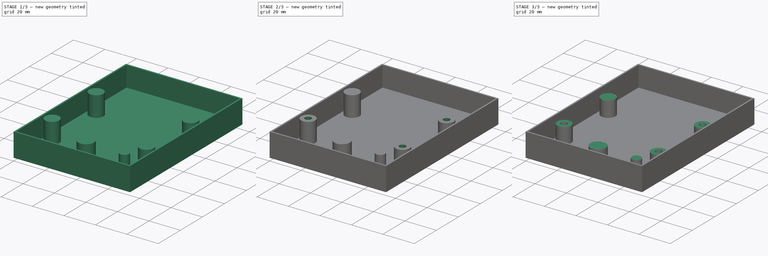
[diagram: build sequence overview — one tinted view per stage of 3, left to right]
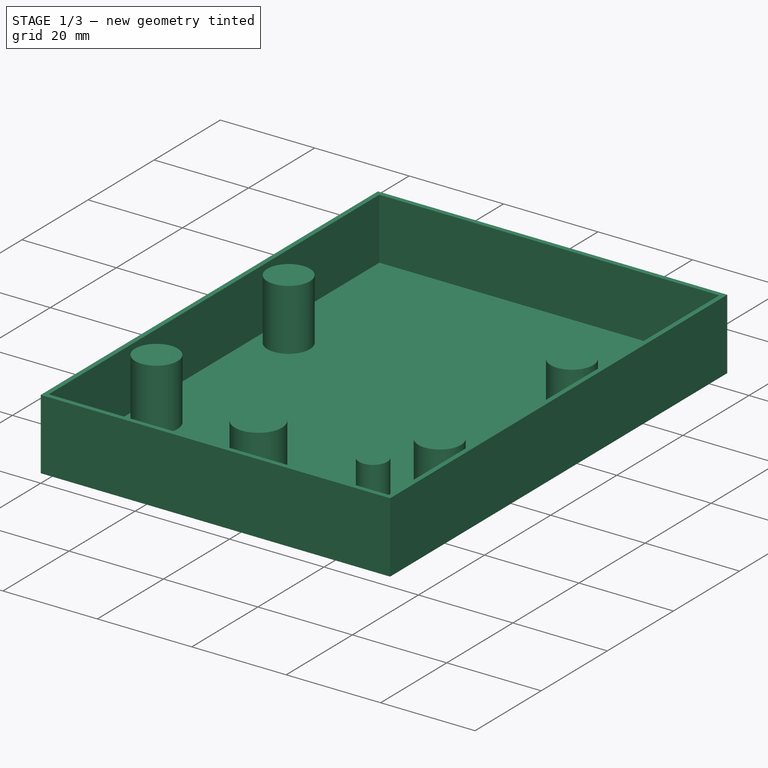
[diagram: stage 1 of 3 — iso view after this stage's code; geometry added in this stage tinted green]
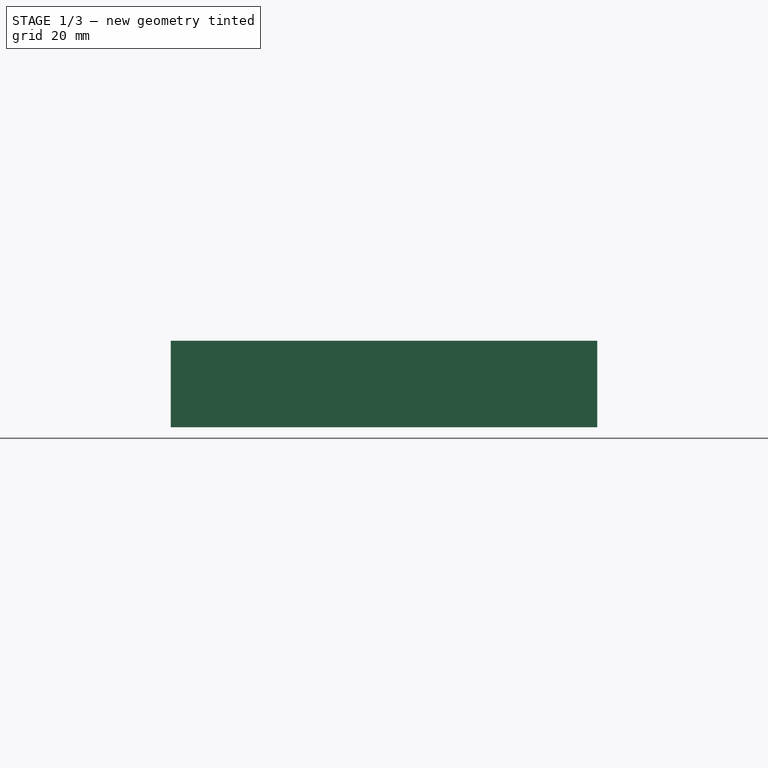
[diagram: stage 1 of 3 — front view after this stage's code; geometry added in this stage tinted green]
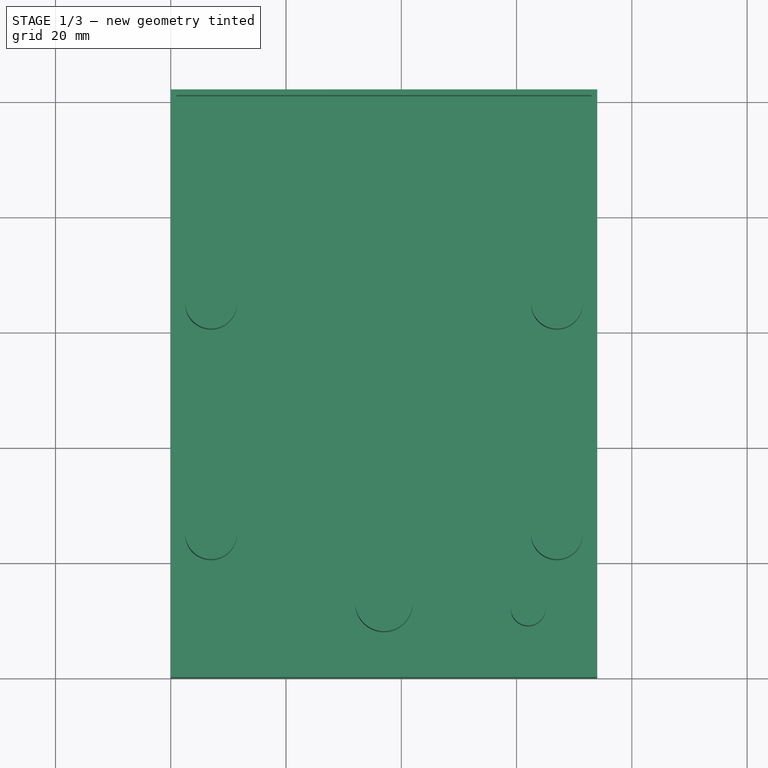
[diagram: stage 1 of 3 — top view after this stage's code; geometry added in this stage tinted green]
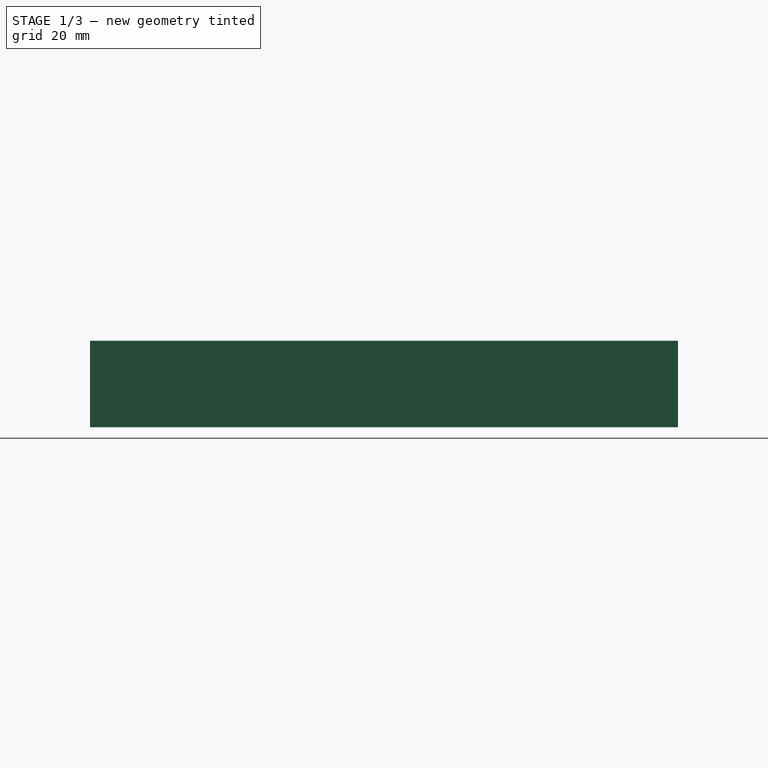
[diagram: stage 1 of 3 — right view after this stage's code; geometry added in this stage tinted green]
FCSTD DOCUMENT  (FreeCAD 0.18R16131 (Git))
Label: qs2015-t3-back
License: All rights reserved
LicenseURL: http://en.wikipedia.org/wiki/All_rights_reserved
objects: Sketcher::SketchObject×5, PartDesign::Pocket×4, PartDesign::Pad×1, PartDesign::Body×1
note: 16 computed .brp shape members not serialized (recipe doc carries the construction recipe); baked Part::Feature solids carry a one-line shape summary decoded from their .brp

FEATURE [Sketcher::SketchObject] Sketch
  MapMode = 5
  Support = -> [XY_Plane]
  sketch-geometry (4):
    g0: LineSegment StartX=0 StartY=0 StartZ=0 EndX=74 EndY=0 EndZ=0
    g1: LineSegment StartX=74 StartY=0 StartZ=0 EndX=74 EndY=102 EndZ=0
    g2: LineSegment StartX=74 StartY=102 StartZ=0 EndX=0 EndY=102 EndZ=0
    g3: LineSegment StartX=0 StartY=102 StartZ=0 EndX=0 EndY=0 EndZ=0
  constraints (11):
    c: Coincident(g0,g1)
    c: Coincident(g1,g2)
    c: Coincident(g2,g3)
    c: Coincident(g3,g0)
    c: Horizontal(g0)
    c: Horizontal(g2)
    c: Vertical(g1)
    c: Vertical(g3)
    c: Coincident(g0,g-1)
    c: DistanceX(g0,g0) = 74
    c: DistanceY(g3,g3) = 102
FEATURE [PartDesign::Pad] Pad
  Length = 15
  Length2 = 100
  Profile = -> Sketch
  Type = 0
FEATURE [Sketcher::SketchObject] Sketch001
  ExternalGeometry = -> [Pad]
  MapMode = 5
  Placement = pos=(0,0,15) rot=(0,0,1;0rad)
  Support = -> [Pad]
  sketch-geometry (20):
    g0: LineSegment StartX=1 StartY=1 StartZ=0 EndX=73 EndY=1 EndZ=0
    g1: LineSegment StartX=73 StartY=1 StartZ=0 EndX=73 EndY=101 EndZ=0
    g2: LineSegment StartX=73 StartY=101 StartZ=0 EndX=1 EndY=101 EndZ=0
    g3: LineSegment StartX=1 StartY=101 StartZ=0 EndX=1 EndY=1 EndZ=0
    g4: LineSegment [constr] StartX=7 StartY=65 StartZ=0 EndX=67 EndY=65 EndZ=0
    g5: LineSegment [constr] StartX=67 StartY=65 StartZ=0 EndX=67 EndY=25 EndZ=0
    g6: LineSegment [constr] StartX=67 StartY=25 StartZ=0 EndX=7 EndY=25 EndZ=0
    g7: LineSegment [constr] StartX=7 StartY=25 StartZ=0 EndX=7 EndY=65 EndZ=0
    g8: LineSegment [constr] StartX=1 StartY=65 StartZ=0 EndX=7 EndY=65 EndZ=0
    g9: LineSegment [constr] StartX=67 StartY=65 StartZ=0 EndX=73 EndY=65 EndZ=0
    g10: Circle CenterX=67 CenterY=25 CenterZ=0 NormalX=0 NormalY=0 NormalZ=1 AngleXU=0 Radius=4.5
    g11: Circle CenterX=7 CenterY=25 CenterZ=0 NormalX=0 NormalY=0 NormalZ=1 AngleXU=0 Radius=4.5
    g12: Circle CenterX=7 CenterY=65 CenterZ=0 NormalX=0 NormalY=0 NormalZ=1 AngleXU=0 Radius=4.5
    g13: Circle CenterX=67 CenterY=65 CenterZ=0 NormalX=0 NormalY=0 NormalZ=1 AngleXU=0 Radius=4.5
    g14: Circle CenterX=37 CenterY=13 CenterZ=0 NormalX=0 NormalY=0 NormalZ=1 AngleXU=0 Radius=5
    g15: LineSegment [constr] StartX=37 StartY=13 StartZ=0 EndX=1 EndY=13 EndZ=0
    g16: LineSegment [constr] StartX=37 StartY=13 StartZ=0 EndX=73 EndY=13 EndZ=0
    g17: LineSegment [constr] StartX=37 StartY=13 StartZ=0 EndX=37 EndY=25 EndZ=0
    g18: LineSegment [constr] StartX=37 StartY=13 StartZ=0 EndX=37 EndY=1 EndZ=0
    g19: Circle CenterX=62 CenterY=12 CenterZ=0 NormalX=0 NormalY=0 NormalZ=1 AngleXU=0 Radius=3
  constraints (56):
    c: Coincident(g0,g1)
    c: Coincident(g1,g2)
    c: Coincident(g2,g3)
    c: Coincident(g3,g0)
    c: Horizontal(g0)
    c: Horizontal(g2)
    c: Vertical(g1)
    c: Vertical(g3)
    c: DistanceX(g-1,g0) = 1
    c: DistanceY(g-1,g0) = 1
    c: DistanceX(g1,g-3) = 1
    c: DistanceY(g1,g-3) = 1
    c: Coincident(g4,g5)
    c: Coincident(g5,g6)
    c: Coincident(g6,g7)
    c: Coincident(g7,g4)
    c: Horizontal(g4)
    c: Horizontal(g6)
    c: Vertical(g5)
    c: Vertical(g7)
    c: DistanceX(g6,g6) = 60
    c: DistanceY(g7,g7) = 40
    c: DistanceY(g0,g6) = 24
    c: PointOnObject(g8,g3)
    c: Coincident(g8,g4)
    c: Coincident(g9,g4)
    c: PointOnObject(g9,g1)
    c: Horizontal(g9)
    c: Horizontal(g8)
    c: Equal(g8,g9)
    c: Equal(g10,g11)
    c: Equal(g11,g12)
    c: Equal(g12,g13)
    c: Diameter(g13) = 9
    c: Coincident(g13,g4)
    c: Diameter(g14) = 10
    c: Coincident(g15,g14)
    c: PointOnObject(g15,g3)
    c: Horizontal(g15)
    c: Coincident(g16,g14)
    c: PointOnObject(g16,g1)
    c: Horizontal(g16)
    c: Equal(g16,g15)
    c: Coincident(g17,g14)
    c: PointOnObject(g17,g6)
    c: Coincident(g18,g14)
    c: PointOnObject(g18,g0)
    c: Vertical(g18)
    c: Vertical(g17)
    c: Equal(g17,g18)
    c: Diameter(g19) = 6
    c: DistanceX(g19,g10) = 5
    c: DistanceY(g19,g5) = 13
    c: Coincident(g4,g12)
    c: Coincident(g11,g6)
    c: Coincident(g10,g5)
FEATURE [PartDesign::Pocket] Pocket
  BaseFeature = -> Pad
  Length = 13
  Length2 = 100
  Profile = -> Sketch001
  Type = 0
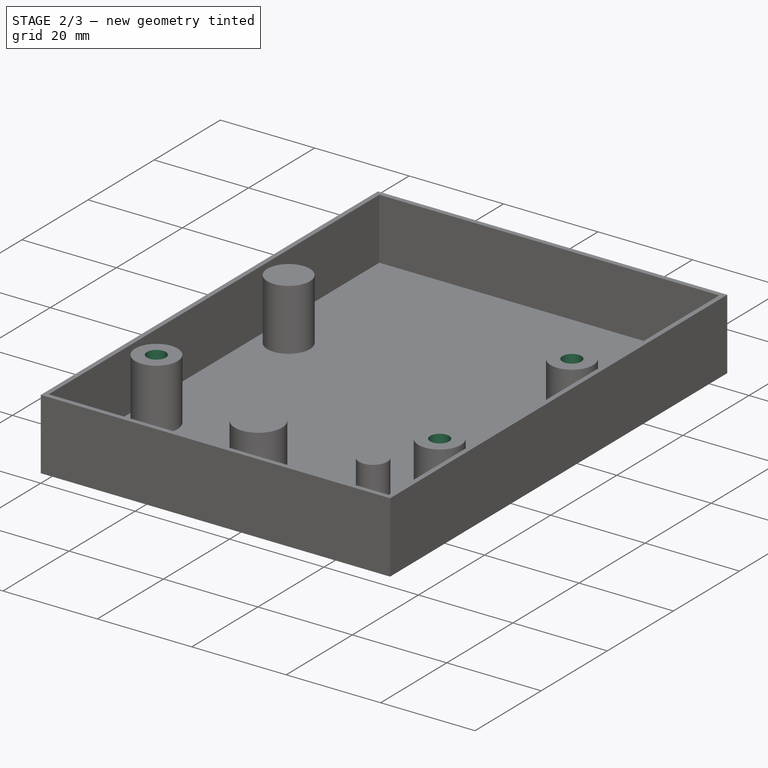
[diagram: stage 2 of 3 — iso view after this stage's code; geometry added in this stage tinted green]
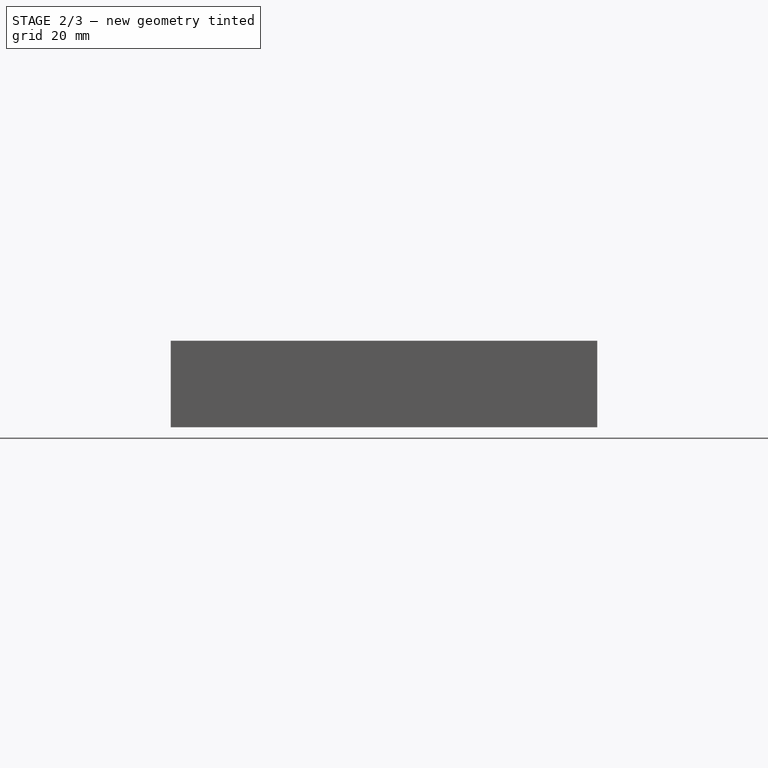
[diagram: stage 2 of 3 — front view after this stage's code; geometry added in this stage tinted green]
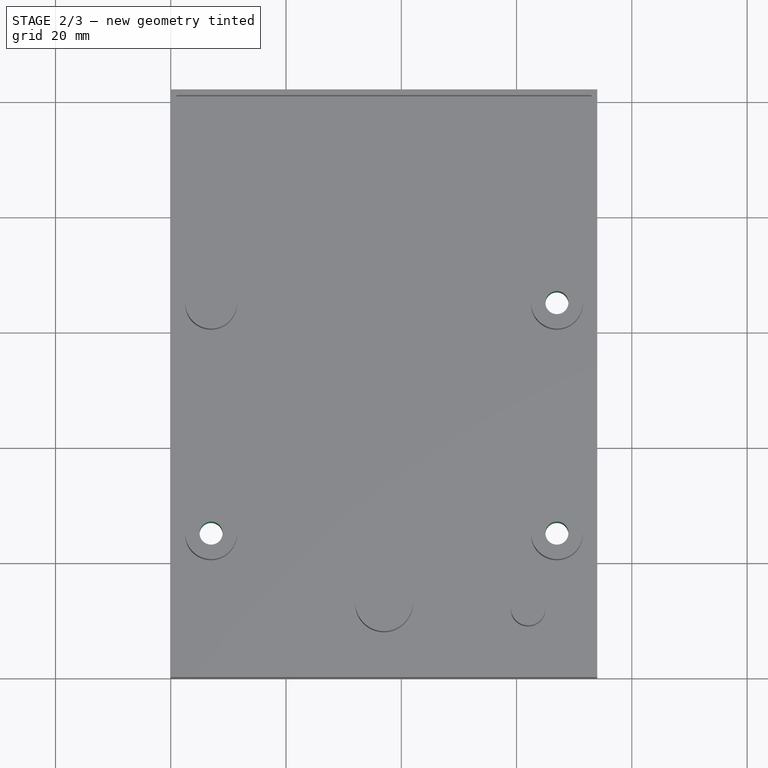
[diagram: stage 2 of 3 — top view after this stage's code; geometry added in this stage tinted green]
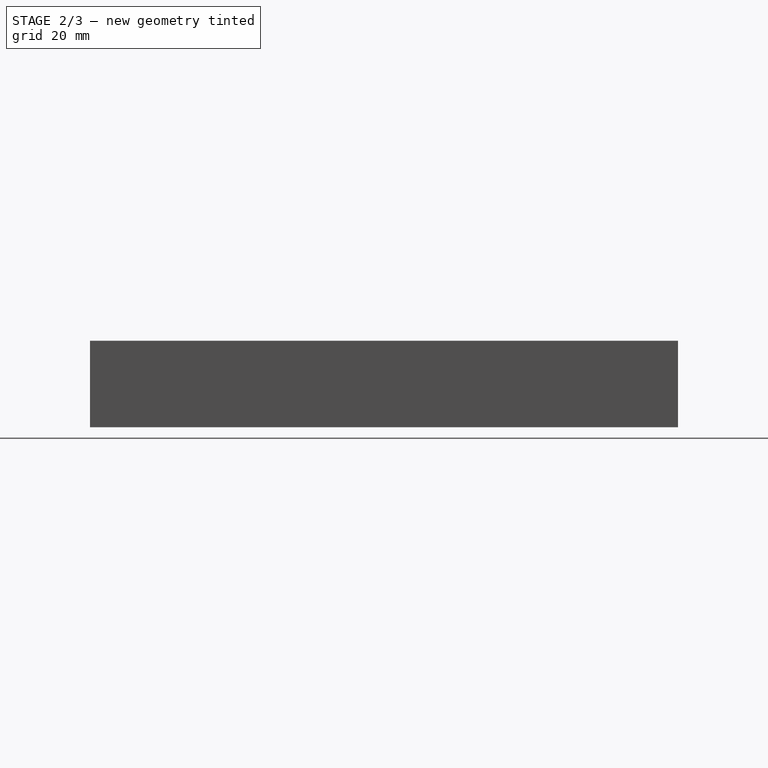
[diagram: stage 2 of 3 — right view after this stage's code; geometry added in this stage tinted green]
FEATURE [Sketcher::SketchObject] Sketch002
  ExternalGeometry = -> [Pocket]
  MapMode = 5
  Placement = pos=(0,0,15) rot=(0,0,1;0rad)
  Support = -> [Pocket]
  sketch-geometry (3):
    g0: Circle CenterX=67 CenterY=65 CenterZ=0 NormalX=0 NormalY=0 NormalZ=1 AngleXU=0 Radius=2
    g1: Circle CenterX=67 CenterY=25 CenterZ=0 NormalX=0 NormalY=0 NormalZ=1 AngleXU=0 Radius=2
    g2: Circle CenterX=7 CenterY=25 CenterZ=0 NormalX=0 NormalY=0 NormalZ=1 AngleXU=0 Radius=2
  constraints (6):
    c: Coincident(g0,g-4)
    c: Coincident(g1,g-5)
    c: Coincident(g2,g-6)
    c: Equal(g2,g1)
    c: Equal(g1,g0)
    c: Diameter(g1) = 4
FEATURE [PartDesign::Pocket] Pocket001
  BaseFeature = -> Pocket
  Length = 5
  Length2 = 100
  Profile = -> Sketch002
  Type = 1
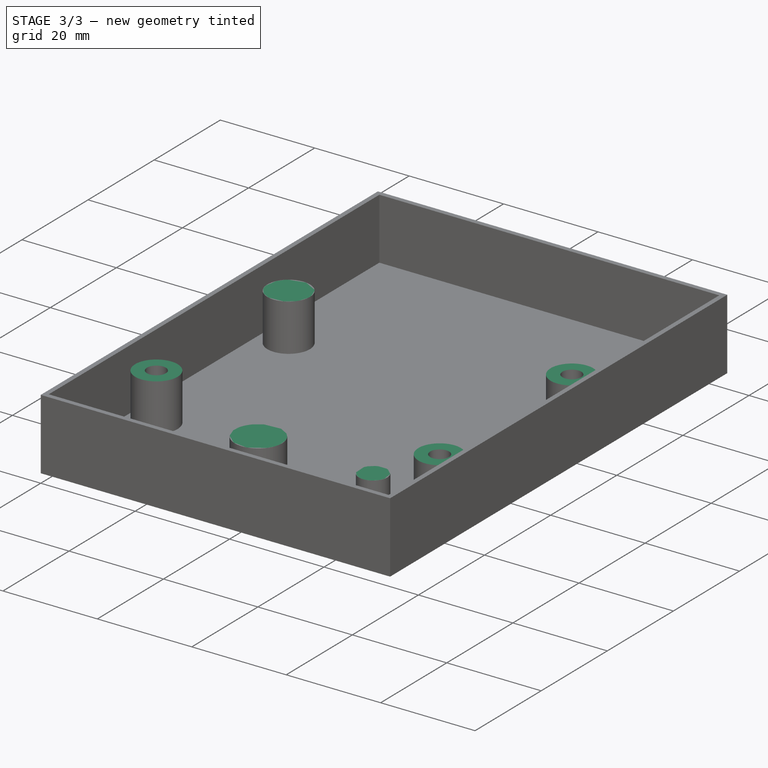
[diagram: stage 3 of 3 — iso view after this stage's code; geometry added in this stage tinted green]
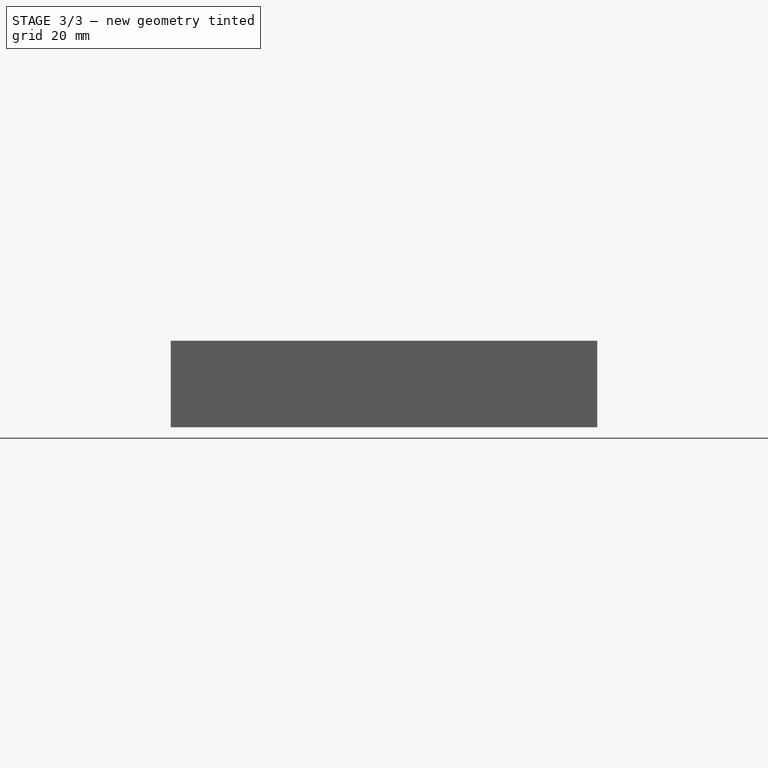
[diagram: stage 3 of 3 — front view after this stage's code; geometry added in this stage tinted green]
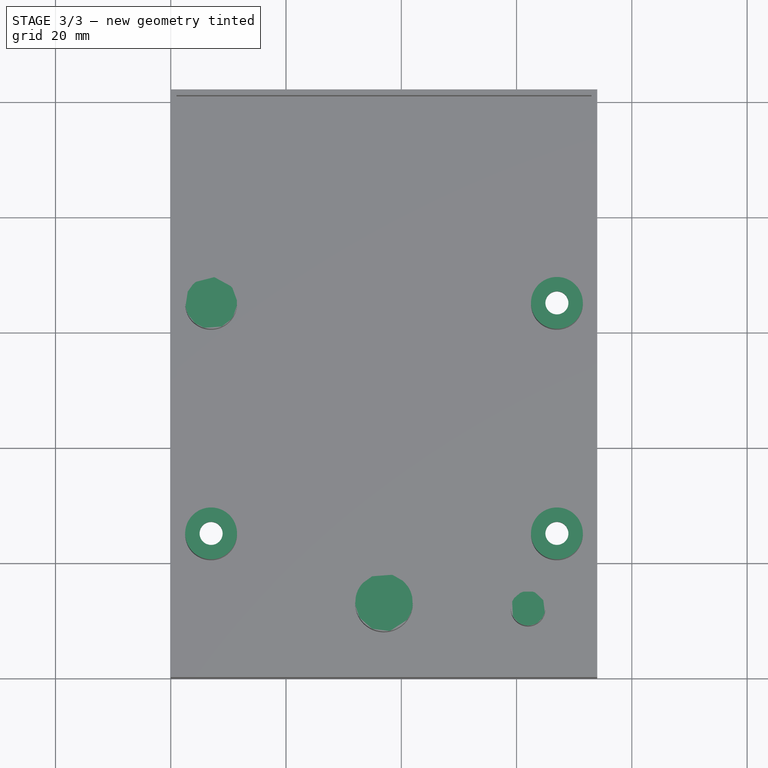
[diagram: stage 3 of 3 — top view after this stage's code; geometry added in this stage tinted green]
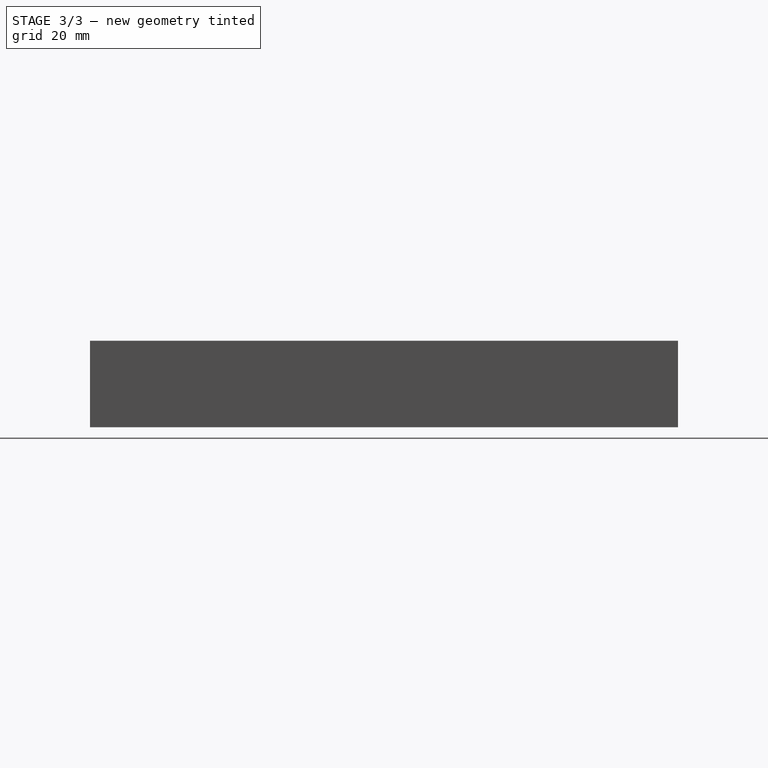
[diagram: stage 3 of 3 — right view after this stage's code; geometry added in this stage tinted green]
FEATURE [Sketcher::SketchObject] Sketch003
  ExternalGeometry = -> [Pocket001]
  MapMode = 5
  Placement = pos=(0,0,0) rot=(1,0,0;3.14159rad)
  Support = -> [Pocket001]
  sketch-geometry (21):
    g0: LineSegment StartX=9.75 StartY=-26.5877 StartZ=0 EndX=9.75 EndY=-23.4123 EndZ=0
    g1: LineSegment StartX=9.75 StartY=-23.4123 StartZ=0 EndX=7 EndY=-21.8246 EndZ=0
    g2: LineSegment StartX=7 StartY=-21.8246 StartZ=0 EndX=4.25 EndY=-23.4123 EndZ=0
    g3: LineSegment StartX=4.25 StartY=-23.4123 StartZ=0 EndX=4.25 EndY=-26.5877 EndZ=0
    g4: LineSegment StartX=4.25 StartY=-26.5877 StartZ=0 EndX=7 EndY=-28.1754 EndZ=0
    g5: LineSegment StartX=7 StartY=-28.1754 StartZ=0 EndX=9.75 EndY=-26.5877 EndZ=0
    g6: Circle [constr] CenterX=7 CenterY=-25 CenterZ=0 NormalX=0 NormalY=0 NormalZ=1 AngleXU=0 Radius=3.17543
    g7: LineSegment StartX=69.75 StartY=-26.5877 StartZ=0 EndX=69.75 EndY=-23.4123 EndZ=0
    g8: LineSegment StartX=69.75 StartY=-23.4123 StartZ=0 EndX=67 EndY=-21.8246 EndZ=0
    g9: LineSegment StartX=67 StartY=-21.8246 StartZ=0 EndX=64.25 EndY=-23.4123 EndZ=0
    g10: LineSegment StartX=64.25 StartY=-23.4123 StartZ=0 EndX=64.25 EndY=-26.5877 EndZ=0
    g11: LineSegment StartX=64.25 StartY=-26.5877 StartZ=0 EndX=67 EndY=-28.1754 EndZ=0
    g12: LineSegment StartX=67 StartY=-28.1754 StartZ=0 EndX=69.75 EndY=-26.5877 EndZ=0
    g13: Circle [constr] CenterX=67 CenterY=-25 CenterZ=0 NormalX=0 NormalY=0 NormalZ=1 AngleXU=0 Radius=3.17543
    g14: LineSegment StartX=69.75 StartY=-66.5877 StartZ=0 EndX=69.75 EndY=-63.4123 EndZ=0
    g15: LineSegment StartX=69.75 StartY=-63.4123 StartZ=0 EndX=67 EndY=-61.8246 EndZ=0
    g16: LineSegment StartX=67 StartY=-61.8246 StartZ=0 EndX=64.25 EndY=-63.4123 EndZ=0
    g17: LineSegment StartX=64.25 StartY=-63.4123 StartZ=0 EndX=64.25 EndY=-66.5877 EndZ=0
    g18: LineSegment StartX=64.25 StartY=-66.5877 StartZ=0 EndX=67 EndY=-68.1754 EndZ=0
    g19: LineSegment StartX=67 StartY=-68.1754 StartZ=0 EndX=69.75 EndY=-66.5877 EndZ=0
    g20: Circle [constr] CenterX=67 CenterY=-65 CenterZ=0 NormalX=0 NormalY=0 NormalZ=1 AngleXU=0 Radius=3.17543
  constraints (48):
    c: Coincident(g0,g1)
    c: Coincident(g1,g2)
    c: Coincident(g2,g3)
    c: Coincident(g3,g4)
    c: Coincident(g4,g5)
    c: Coincident(g5,g0)
    c: Equal(g0, g1-g5) x5
    c: PointOnObject(g0,g6)
    c: PointOnObject(g1,g6)
    c: PointOnObject(g2,g6)
    c: PointOnObject(g3,g6)
    c: PointOnObject(g4,g6)
    c: PointOnObject(g5,g6)
    c: Coincident(g7,g8)
    c: Coincident(g8,g9)
    c: Coincident(g9,g10)
    c: Coincident(g10,g11)
    c: Coincident(g11,g12)
    c: Coincident(g12,g7)
    c: Equal(g7, g8-g12) x5
    c: PointOnObject(g7,g13)
    c: PointOnObject(g8,g13)
    c: PointOnObject(g9,g13)
    c: PointOnObject(g10,g13)
    c: PointOnObject(g11,g13)
    c: PointOnObject(g12,g13)
    c: Coincident(g14,g15)
    c: Coincident(g15,g16)
    c: Coincident(g16,g17)
    c: Coincident(g17,g18)
    c: Coincident(g18,g19)
    c: Coincident(g19,g14)
    c: Equal(g14, g15-g19) x5
    c: PointOnObject(g14,g20)
    c: PointOnObject(g15,g20)
    c: PointOnObject(g16,g20)
    c: PointOnObject(g17,g20)
    c: PointOnObject(g18,g20)
    c: PointOnObject(g19,g20)
    c: Vertical(g10)
    c: Vertical(g3)
    c: Vertical(g17)
    c: Equal(g17,g10)
    c: Equal(g10,g3)
    c: DistanceX(g3,g0) = 5.5
    c: Coincident(g6,g-5)
    c: Coincident(g13,g-3)
    c: Coincident(g20,g-4)
FEATURE [PartDesign::Pocket] Pocket002
  BaseFeature = -> Pocket001
  Length = 9
  Length2 = 100
  Profile = -> Sketch003
  Type = 0
FEATURE [Sketcher::SketchObject] Sketch004
  ExternalGeometry = -> [Pocket002]
  MapMode = 5
  Placement = pos=(0,0,15) rot=(0,0,1;0rad)
  Support = -> [Pocket002]
  sketch-geometry (4):
    g0: LineSegment StartX=1 StartY=101 StartZ=0 EndX=73 EndY=101 EndZ=0
    g1: LineSegment StartX=73 StartY=101 StartZ=0 EndX=73 EndY=1 EndZ=0
    g2: LineSegment StartX=73 StartY=1 StartZ=0 EndX=1 EndY=1 EndZ=0
    g3: LineSegment StartX=1 StartY=1 StartZ=0 EndX=1 EndY=101 EndZ=0
  constraints (10):
    c: Coincident(g0,g1)
    c: Coincident(g1,g2)
    c: Coincident(g2,g3)
    c: Coincident(g3,g0)
    c: Horizontal(g0)
    c: Horizontal(g2)
    c: Vertical(g1)
    c: Vertical(g3)
    c: Coincident(g0,g-6)
    c: Coincident(g1,g-5)
FEATURE [PartDesign::Pocket] Pocket003
  BaseFeature = -> Pocket002
  Length = 3
  Length2 = 100
  Profile = -> Sketch004
  Type = 0
FEATURE [PartDesign::Body] Body
  Group = -> [Sketch,Pad,Sketch001,Pocket,Sketch002,Pocket001,Sketch003,Pocket002,Sketch004,Pocket003]
  Origin = -> Origin
  Tip = -> Pocket003
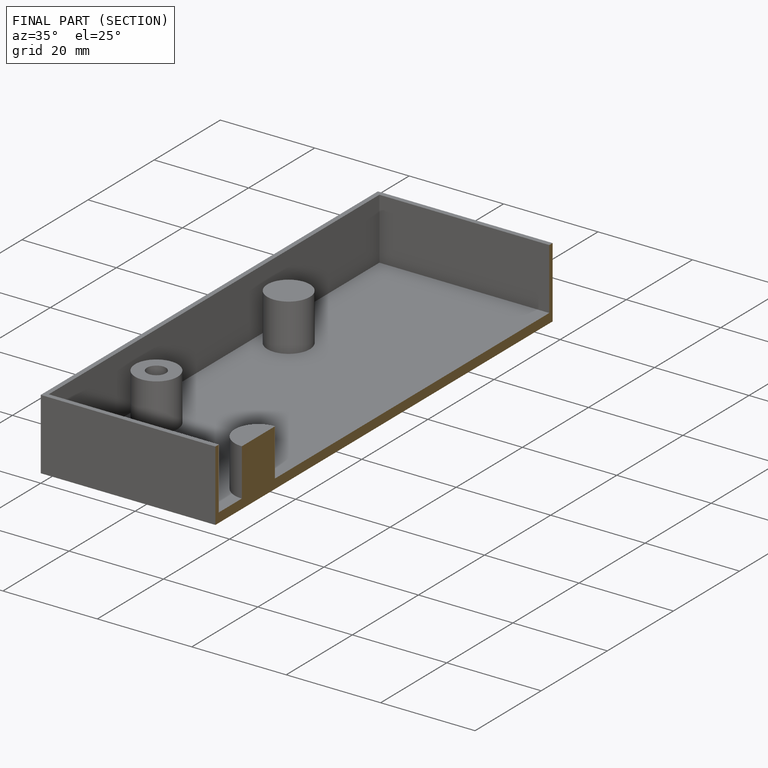
[diagram: finished part — half-section view (interior)]
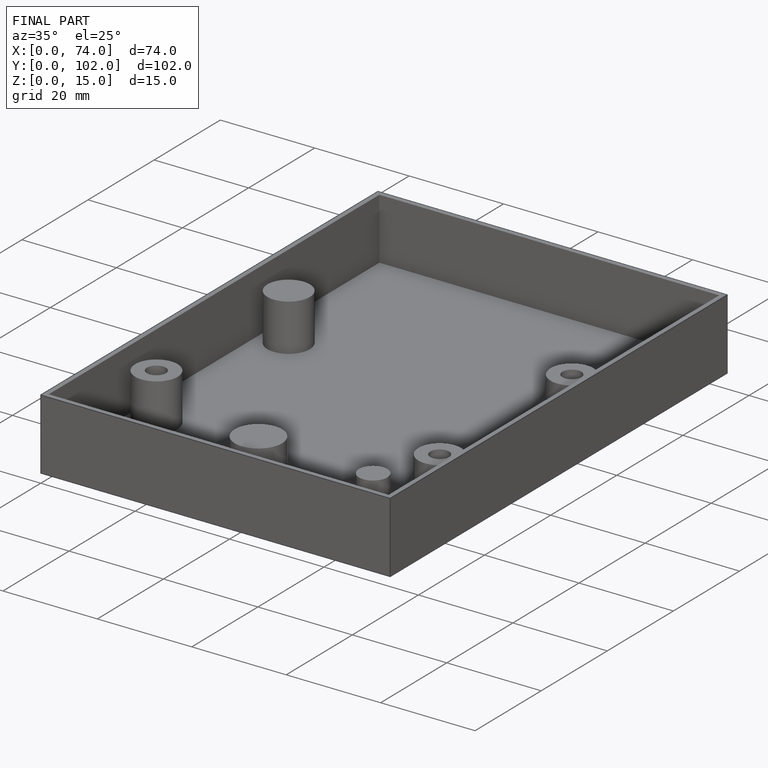
[diagram: finished part — iso view with bounding-box wireframe]
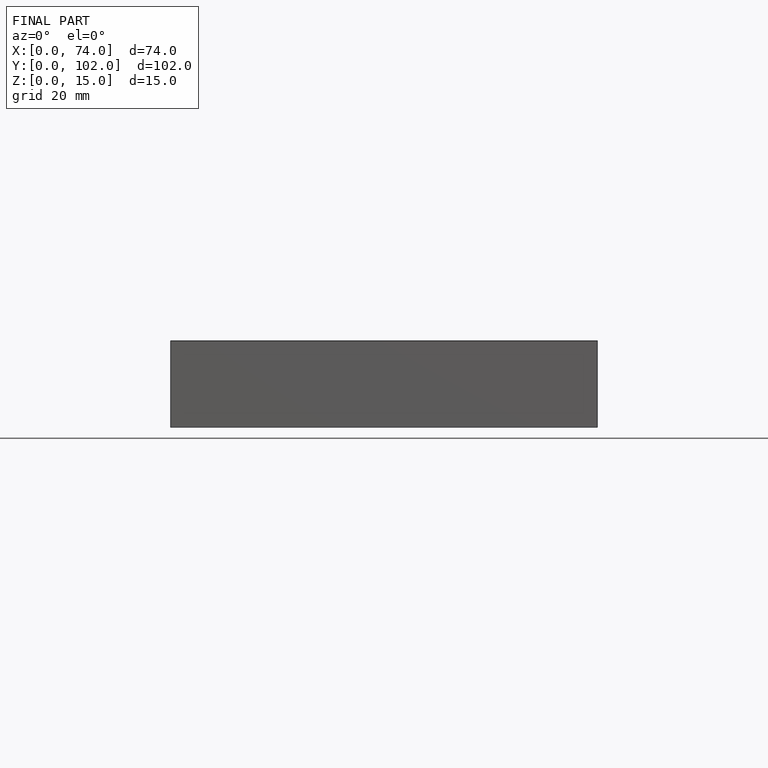
[diagram: finished part — front view with bounding-box wireframe]
